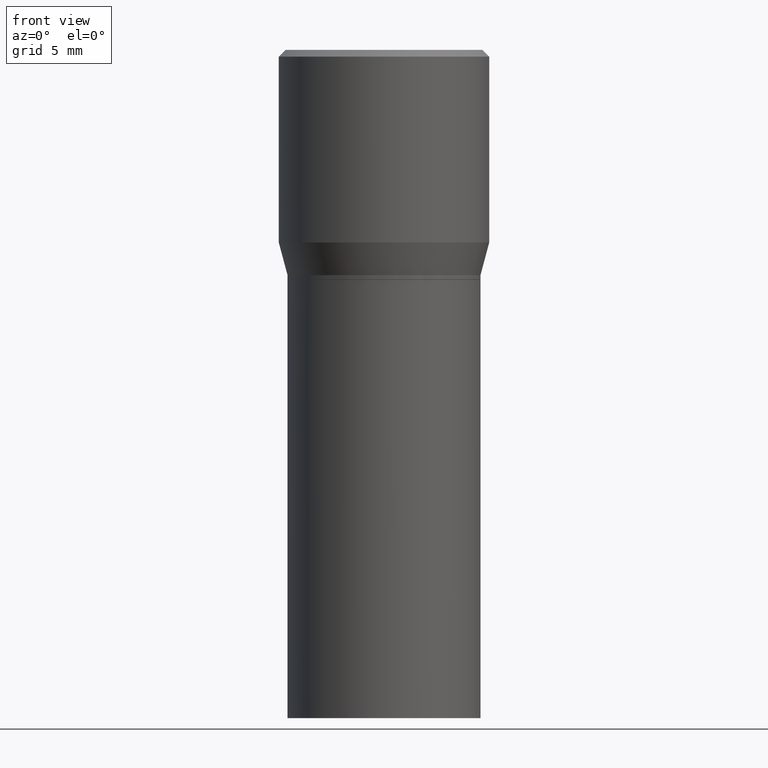
[diagram: clean part render]
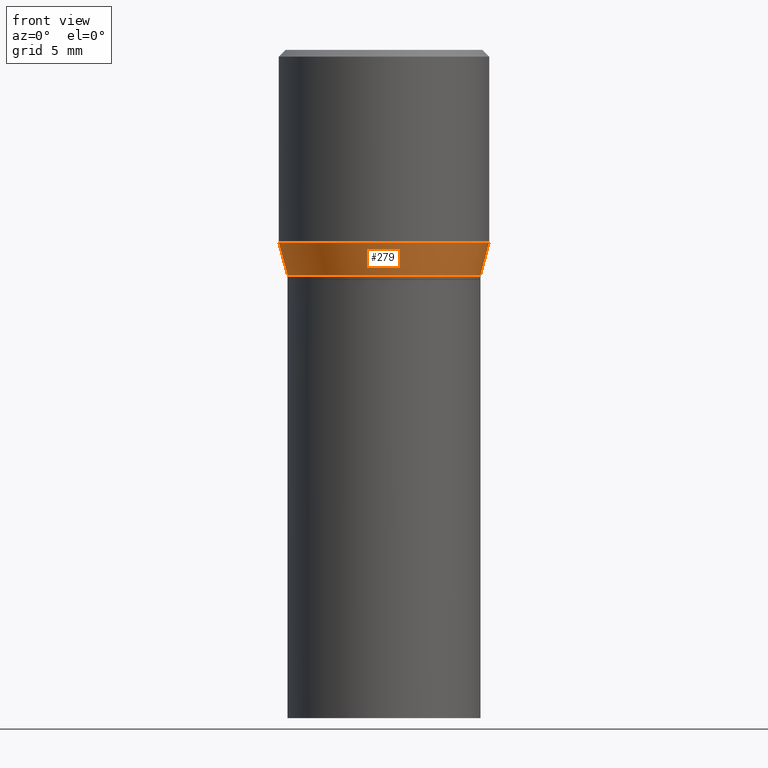
[diagram: same view with one face highlighted and labeled with its STEP entity id]
A machine part, front view. The second image highlights one B-rep face of the part: STEP entity #279.
In plain terms, the highlighted conical surface has half-angle 15 deg.
Its self-contained STEP definition (entity closure, byte-faithful):
#9 = VERTEX_POINT ( 'NONE', #136 ) ;
#16 = ORIENTED_EDGE ( 'NONE', *, *, #362, .T. ) ;
#25 = CARTESIAN_POINT ( 'NONE',  ( -0.2165500000000000480, -2.269618187644819696E-16, -0.5057000000000001494 ) ) ;
#42 = CONICAL_SURFACE ( 'NONE', #91, 0.2165500000000000480, 0.2617993877991494078 ) ;
#56 = CARTESIAN_POINT ( 'NONE',  ( 1.236673575287824021E-29, -1.765642113052979313E-15, -0.5057000000000001494 ) ) ;
#76 = EDGE_CURVE ( 'NONE', #369, #284, #211, .T. ) ;
#91 = AXIS2_PLACEMENT_3D ( 'NONE', #56, #101, #167 ) ;
#101 = DIRECTION ( 'NONE',  ( -2.445468806185136597E-29, 3.491481338843145583E-15, 1.000000000000000000 ) ) ;
#107 = CARTESIAN_POINT ( 'NONE',  ( -0.2165500000000000480, -2.912745497993258696E-17, -0.5057000000000001494 ) ) ;
#136 = CARTESIAN_POINT ( 'NONE',  ( 0.2165500000000000480, -3.277802680905940530E-15, -0.5057000000000001494 ) ) ;
#143 = CARTESIAN_POINT ( 'NONE',  ( 1.236673575287824021E-29, -1.765642113052979313E-15, -0.5057000000000001494 ) ) ;
#145 = VECTOR ( 'NONE', #239, 39.37007874015748854 ) ;
#155 = EDGE_LOOP ( 'NONE', ( #425, #193, #16, #405 ) ) ;
#157 = AXIS2_PLACEMENT_3D ( 'NONE', #143, #175, #313 ) ;
#166 = DIRECTION ( 'NONE',  ( -2.445468806185136597E-29, 3.491481338843145583E-15, 1.000000000000000000 ) ) ;
#167 = DIRECTION ( 'NONE',  ( 1.000000000000000000, -6.982962677686266711E-15, 0.000000000000000000 ) ) ;
#171 = DIRECTION ( 'NONE',  ( -0.2588190451025206840, 5.211531920934545520E-15, 0.9659258262890682012 ) ) ;
#175 = DIRECTION ( 'NONE',  ( -2.445468806185136597E-29, 3.491481338843145583E-15, 1.000000000000000000 ) ) ;
#176 = DIRECTION ( 'NONE',  ( 1.000000000000000000, -6.982962677686268288E-15, 0.000000000000000000 ) ) ;
#179 = CARTESIAN_POINT ( 'NONE',  ( 0.2165500000000000480, -3.277802680905940530E-15, -0.5057000000000001494 ) ) ;
#193 = ORIENTED_EDGE ( 'NONE', *, *, #360, .T. ) ;
#201 = LINE ( 'NONE', #25, #304 ) ;
#204 = AXIS2_PLACEMENT_3D ( 'NONE', #459, #166, #176 ) ;
#211 = CIRCLE ( 'NONE', #204, 0.2361999999999999933 ) ;
#239 = DIRECTION ( 'NONE',  ( 0.2588190451025206840, 1.565188264969626504E-15, 0.9659258262890682012 ) ) ;
#277 = LINE ( 'NONE', #179, #145 ) ;
#279 = ADVANCED_FACE ( 'NONE', ( #417 ), #42, .T. ) ;
#284 = VERTEX_POINT ( 'NONE', #378 ) ;
#291 = EDGE_CURVE ( 'NONE', #322, #369, #201, .T. ) ;
#304 = VECTOR ( 'NONE', #171, 39.37007874015748854 ) ;
#313 = DIRECTION ( 'NONE',  ( 1.000000000000000000, -6.982962677686266711E-15, 0.000000000000000000 ) ) ;
#322 = VERTEX_POINT ( 'NONE', #107 ) ;
#336 = CIRCLE ( 'NONE', #157, 0.2165500000000000480 ) ;
#360 = EDGE_CURVE ( 'NONE', #322, #9, #336, .T. ) ;
#362 = EDGE_CURVE ( 'NONE', #9, #284, #277, .T. ) ;
#369 = VERTEX_POINT ( 'NONE', #465 ) ;
#378 = CARTESIAN_POINT ( 'NONE',  ( 0.2361999999999999933, -3.158970817530236235E-15, -0.4323652016312719004 ) ) ;
#405 = ORIENTED_EDGE ( 'NONE', *, *, #76, .F. ) ;
#417 = FACE_OUTER_BOUND ( 'NONE', #155, .T. ) ;
#425 = ORIENTED_EDGE ( 'NONE', *, *, #291, .F. ) ;
#459 = CARTESIAN_POINT ( 'NONE',  ( 1.057335613469222325E-29, -1.509595033060739709E-15, -0.4323652016312719004 ) ) ;
#465 = CARTESIAN_POINT ( 'NONE',  ( -0.2361999999999999933, 1.687069088046168326E-16, -0.4323652016312719004 ) ) ;